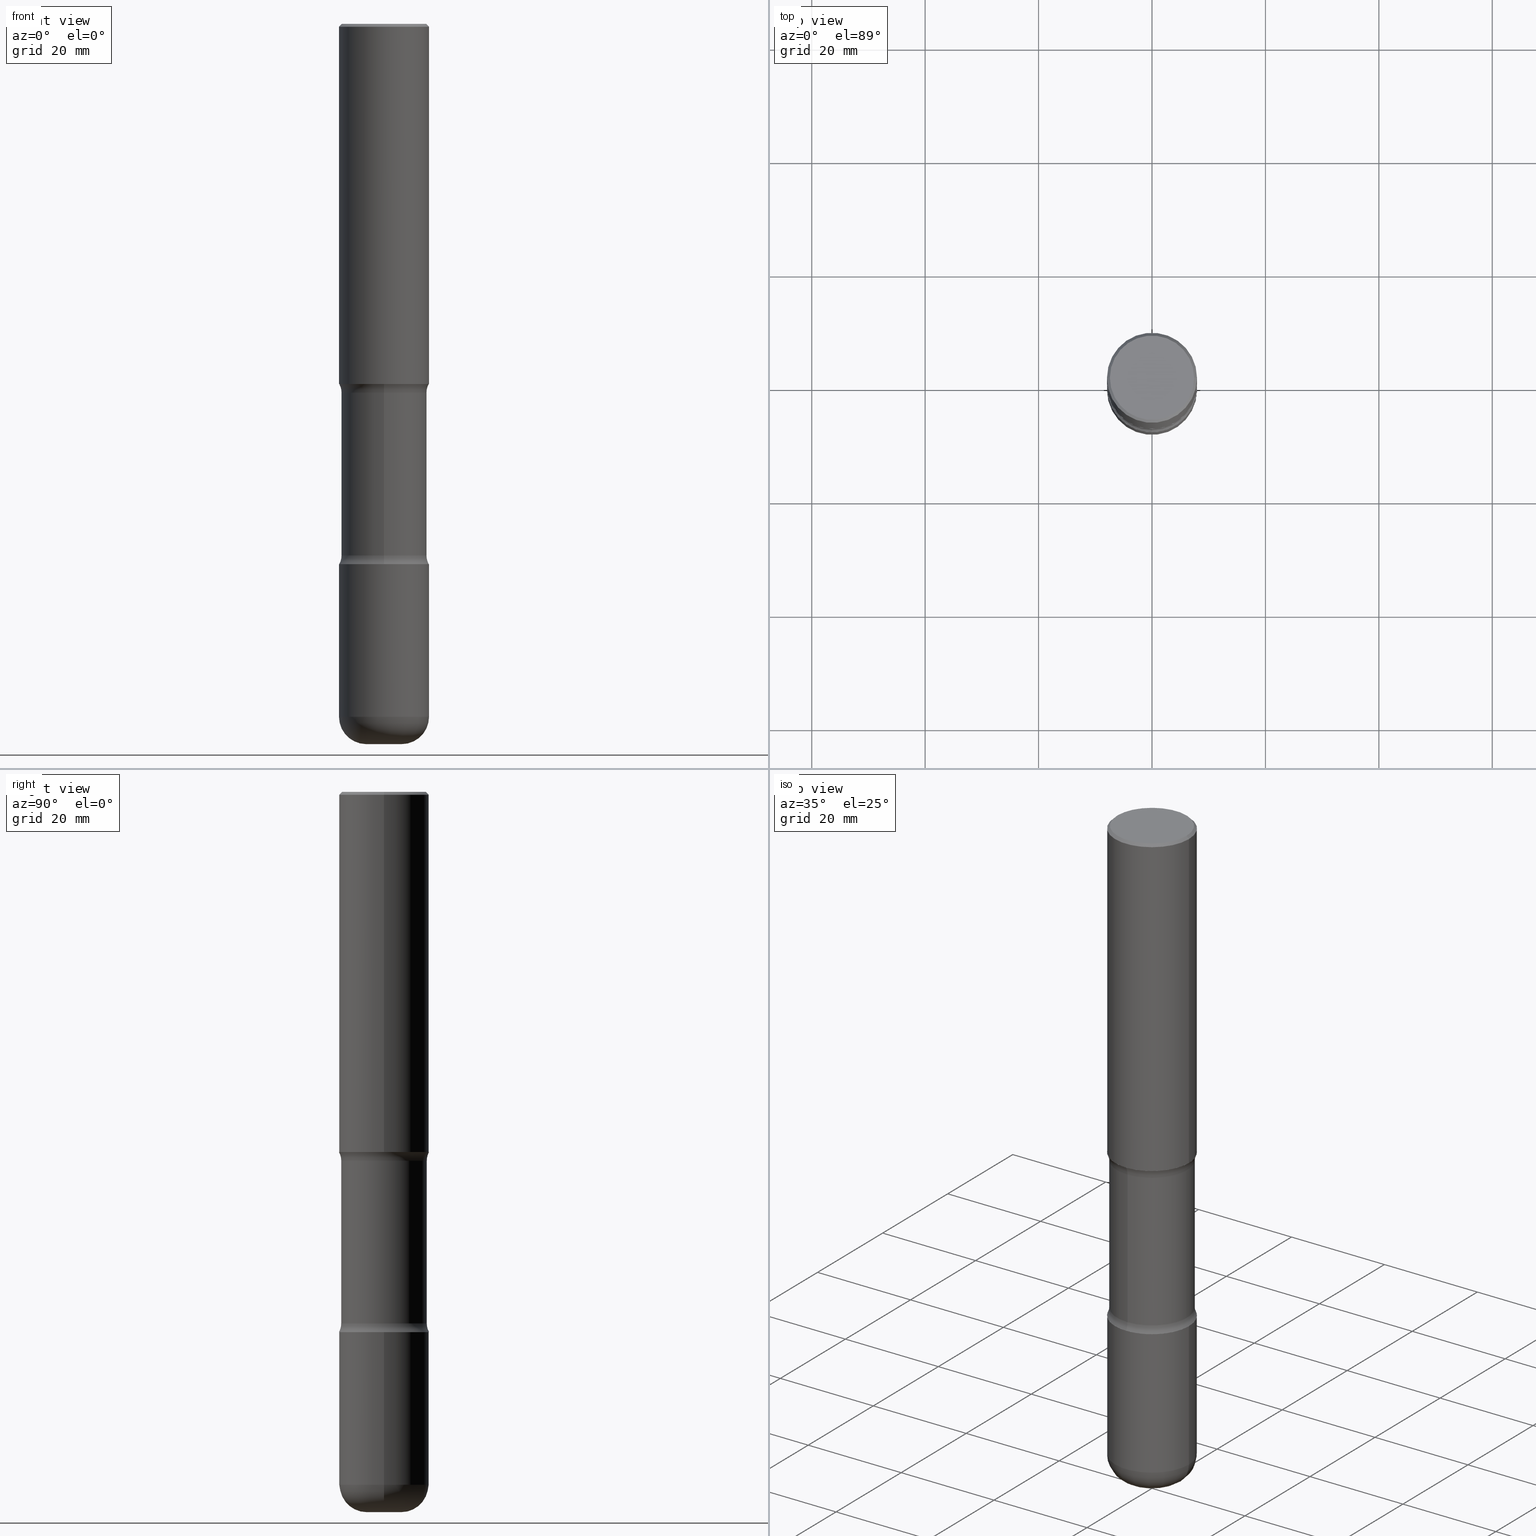
[diagram: canonical four-view strip — front | top / right | iso, engineering-drawing reading convention]
A machine part, canonical four-view strip (front | top / right | iso — engineering-drawing reading convention). The complete STEP part file that produces these views, byte-faithful:
ISO-10303-21;
HEADER;
FILE_DESCRIPTION (( 'STEP AP203' ),
    '1' );
FILE_NAME ('37919.STEP',
    '2024-03-02T01:25:12',
    ( '' ),
    ( '' ),
    'SwSTEP 2.0',
    'SolidWorks 2023',
    '' );
FILE_SCHEMA (( 'CONFIG_CONTROL_DESIGN' ));
ENDSEC;

DATA;
#1 = DIRECTION ( 'NONE',  ( 6.982962677686265922E-15, 1.000000000000000000, -3.382661233743975076E-15 ) ) ;
#2 = APPROVAL_DATE_TIME ( #547, #49 ) ;
#3 = DIRECTION ( 'NONE',  ( 6.860497997771529985E-15, 1.000000000000000000, 0.000000000000000000 ) ) ;
#4 = DIRECTION ( 'NONE',  ( -2.445468806185136597E-29, 3.491481338843145583E-15, 1.000000000000000000 ) ) ;
#5 = ADVANCED_FACE ( 'NONE', ( #72 ), #67, .T. ) ;
#6 = DIRECTION ( 'NONE',  ( 1.000000000000000000, -6.982962677686266711E-15, 4.876176775795936353E-29 ) ) ;
#7 = AXIS2_PLACEMENT_3D ( 'NONE', #174, #43, #542 ) ;
#8 = ORIENTED_EDGE ( 'NONE', *, *, #112, .F. ) ;
#9 = EDGE_CURVE ( 'NONE', #390, #218, #244, .T. ) ;
#10 = PLANE ( 'NONE',  #150 ) ;
#11 = ORIENTED_EDGE ( 'NONE', *, *, #134, .F. ) ;
#12 = ORIENTED_EDGE ( 'NONE', *, *, #462, .T. ) ;
#13 = CIRCLE ( 'NONE', #206, 0.3125000000000002220 ) ;
#14 = CARTESIAN_POINT ( 'NONE',  ( 0.3124999999999998890, -2.213735251080466123E-15, -0.02000000000000006981 ) ) ;
#15 = CYLINDRICAL_SURFACE ( 'NONE', #475, 0.2968750000000000000 ) ;
#16 = ORIENTED_EDGE ( 'NONE', *, *, #413, .T. ) ;
#17 = EDGE_CURVE ( 'NONE', #192, #264, #533, .T. ) ;
#18 = DIRECTION ( 'NONE',  ( -2.445468806185136597E-29, 3.491481338843145583E-15, 1.000000000000000000 ) ) ;
#19 = AXIS2_PLACEMENT_3D ( 'NONE', #220, #166, #439 ) ;
#20 = PERSON_AND_ORGANIZATION_ROLE ( 'design_owner' ) ;
#21 = DIRECTION ( 'NONE',  ( 2.521457479434076939E-29, -3.382661233743975076E-15, -1.000000000000000000 ) ) ;
#22 = ADVANCED_FACE ( 'NONE', ( #88 ), #132, .T. ) ;
#23 = CARTESIAN_POINT ( 'NONE',  ( -0.3125000000000000000, 2.220446049250313081E-15, -1.537167215704658232E-29 ) ) ;
#24 = ORIENTED_EDGE ( 'NONE', *, *, #232, .F. ) ;
#25 = MECHANICAL_CONTEXT ( 'NONE', #57, 'mechanical' ) ;
#26 = ADVANCED_FACE ( 'NONE', ( #408 ), #256, .T. ) ;
#27 = AXIS2_PLACEMENT_3D ( 'NONE', #486, #97, #6 ) ;
#28 = COORDINATED_UNIVERSAL_TIME_OFFSET ( 5, 0, .BEHIND. ) ;
#29 = PLANE ( 'NONE',  #137 ) ;
#30 = AXIS2_PLACEMENT_3D ( 'NONE', #463, #328, #496 ) ;
#31 = DIRECTION ( 'NONE',  ( 1.000000000000000000, -6.860497997771530774E-15, 4.842131541558068249E-29 ) ) ;
#32 = DESIGN_CONTEXT ( 'detailed design', #202, 'design' ) ;
#33 = EDGE_CURVE ( 'NONE', #494, #222, #183, .T. ) ;
#34 = EDGE_LOOP ( 'NONE', ( #223, #415, #195, #58 ) ) ;
#35 = DIRECTION ( 'NONE',  ( 2.521457479434076939E-29, -3.382661233743975076E-15, -1.000000000000000000 ) ) ;
#36 = APPROVAL_DATE_TIME ( #85, #126 ) ;
#37 = DATE_AND_TIME ( #403, #420 ) ;
#38 = DIRECTION ( 'NONE',  ( -2.445468806185136877E-29, 3.491481338843145188E-15, 1.000000000000000000 ) ) ;
#39 = EDGE_LOOP ( 'NONE', ( #250, #299, #307, #82 ) ) ;
#40 = AXIS2_PLACEMENT_3D ( 'NONE', #527, #324, #103 ) ;
#41 = ORIENTED_EDGE ( 'NONE', *, *, #9, .T. ) ;
#42 = CIRCLE ( 'NONE', #30, 0.3125000000000002776 ) ;
#43 = DIRECTION ( 'NONE',  ( 2.521457479434076939E-29, -3.382661233743975076E-15, -1.000000000000000000 ) ) ;
#44 = ORIENTED_EDGE ( 'NONE', *, *, #17, .T. ) ;
#45 = PERSON_AND_ORGANIZATION_ROLE ( 'classification_officer' ) ;
#46 = CARTESIAN_POINT ( 'NONE',  ( 2.073067044938200360E-15, 0.2968749999999871214, -3.689484635215509289 ) ) ;
#47 = DIRECTION ( 'NONE',  ( 6.982962677686266711E-15, 1.000000000000000000, -3.680805717779217644E-15 ) ) ;
#48 = DIRECTION ( 'NONE',  ( -6.982962677686266711E-15, -1.000000000000000000, 0.000000000000000000 ) ) ;
#49 = APPROVAL ( #77, 'UNSPECIFIED' ) ;
#50 = FACE_OUTER_BOUND ( 'NONE', #199, .T. ) ;
#51 = MANIFOLD_SOLID_BREP ( 'Body-Move/Copy2[2]', #322 ) ;
#52 = EDGE_LOOP ( 'NONE', ( #16, #398 ) ) ;
#53 = AXIS2_PLACEMENT_3D ( 'NONE', #295, #194, #469 ) ;
#54 = ORIENTED_EDGE ( 'NONE', *, *, #382, .F. ) ;
#55 = ADVANCED_FACE ( 'NONE', ( #311 ), #212, .F. ) ;
#56 = CARTESIAN_POINT ( 'NONE',  ( 9.170508023194261117E-29, -1.309305502066179584E-14, -3.749999999999999556 ) ) ;
#57 = APPLICATION_CONTEXT ( 'configuration controlled 3d designs of mechanical parts and assemblies' ) ;
#58 = ORIENTED_EDGE ( 'NONE', *, *, #426, .F. ) ;
#59 = APPROVAL_STATUS ( 'not_yet_approved' ) ;
#60 = CARTESIAN_POINT ( 'NONE',  ( 9.170508023194261117E-29, -1.309305502066179584E-14, -3.749999999999999556 ) ) ;
#61 = CIRCLE ( 'NONE', #332, 0.3125000000000001665 ) ;
#62 = VECTOR ( 'NONE', #414, 39.37007874015748143 ) ;
#63 = LINE ( 'NONE', #14, #62 ) ;
#64 = ADVANCED_FACE ( 'NONE', ( #162 ), #367, .T. ) ;
#65 = ORIENTED_EDGE ( 'NONE', *, *, #152, .T. ) ;
#66 = CARTESIAN_POINT ( 'NONE',  ( 6.113672015462840371E-29, -8.728703347107863365E-15, -2.499999999999999556 ) ) ;
#67 = CONICAL_SURFACE ( 'NONE', #353, 0.3124999999999998890, 0.7853981633974479459 ) ;
#68 = ADVANCED_FACE ( 'NONE', ( #402 ), #460, .F. ) ;
#69 = AXIS2_PLACEMENT_3D ( 'NONE', #490, #18, #273 ) ;
#70 = ADVANCED_BREP_SHAPE_REPRESENTATION ( '37919', ( #242, #51, #253, #410 ), #396 ) ;
#71 = DIRECTION ( 'NONE',  ( 2.521457479434076939E-29, -3.382661233743975076E-15, -1.000000000000000000 ) ) ;
#72 = FACE_OUTER_BOUND ( 'NONE', #39, .T. ) ;
#73 = EDGE_LOOP ( 'NONE', ( #480, #268 ) ) ;
#74 = ADVANCED_FACE ( 'NONE', ( #233 ), #327, .T. ) ;
#75 = LENGTH_MEASURE_WITH_UNIT ( LENGTH_MEASURE( 0.02539999999999999897 ), #109 );
#76 = DIRECTION ( 'NONE',  ( -2.445468806185136597E-29, 3.491481338843145583E-15, 1.000000000000000000 ) ) ;
#77 = APPROVAL_STATUS ( 'not_yet_approved' ) ;
#78 = DIRECTION ( 'NONE',  ( 6.982962677686265922E-15, 1.000000000000000000, -3.496765431890253764E-15 ) ) ;
#79 = PERSON_AND_ORGANIZATION ( #175, #173 ) ;
#80 = CIRCLE ( 'NONE', #106, 0.3125000000000001665 ) ;
#81 = EDGE_LOOP ( 'NONE', ( #431, #326, #44, #296 ) ) ;
#82 = ORIENTED_EDGE ( 'NONE', *, *, #232, .T. ) ;
#83 = CARTESIAN_POINT ( 'NONE',  ( -0.3124999999999998890, 2.112346210000094260E-15, -0.02000000000000006981 ) ) ;
#84 = ORIENTED_EDGE ( 'NONE', *, *, #196, .F. ) ;
#85 = DATE_AND_TIME ( #123, #513 ) ;
#86 = DIRECTION ( 'NONE',  ( -6.982962677686266711E-15, -1.000000000000000000, 3.491481338843145583E-15 ) ) ;
#87 = ORIENTED_EDGE ( 'NONE', *, *, #204, .T. ) ;
#88 = FACE_OUTER_BOUND ( 'NONE', #89, .T. ) ;
#89 = EDGE_LOOP ( 'NONE', ( #445, #210 ) ) ;
#90 = VERTEX_POINT ( 'NONE', #151 ) ;
#91 = EDGE_CURVE ( 'NONE', #388, #446, #292, .T. ) ;
#92 = DIRECTION ( 'NONE',  ( 2.521457479434076939E-29, -3.382661233743974681E-15, -1.000000000000000000 ) ) ;
#93 = CARTESIAN_POINT ( 'NONE',  ( 4.890937612370289799E-31, -6.982962677686315028E-17, -0.02000000000000006981 ) ) ;
#94 = AXIS2_PLACEMENT_3D ( 'NONE', #239, #422, #467 ) ;
#95 = CARTESIAN_POINT ( 'NONE',  ( 2.182175836777019878E-15, 0.3124999999999913958, -2.500000000000000444 ) ) ;
#96 = CARTESIAN_POINT ( 'NONE',  ( 0.3125000000000001665, -1.897620107661249005E-14, -4.810000000000000497 ) ) ;
#97 = DIRECTION ( 'NONE',  ( -2.445468806185136597E-29, 3.491481338843145583E-15, 1.000000000000000000 ) ) ;
#98 = VECTOR ( 'NONE', #370, 39.37007874015748143 ) ;
#99 = AXIS2_PLACEMENT_3D ( 'NONE', #310, #86, #550 ) ;
#100 = DIRECTION ( 'NONE',  ( -2.445468806185136597E-29, 3.491481338843145583E-15, 1.000000000000000000 ) ) ;
#101 = ORIENTED_EDGE ( 'NONE', *, *, #443, .T. ) ;
#102 = ADVANCED_FACE ( 'NONE', ( #503 ), #158, .F. ) ;
#103 = DIRECTION ( 'NONE',  ( 1.000000000000000000, -6.982962677686266711E-15, 4.876176775795936353E-29 ) ) ;
#104 = PLANE ( 'NONE',  #94 ) ;
#105 = ORIENTED_EDGE ( 'NONE', *, *, #91, .T. ) ;
#106 = AXIS2_PLACEMENT_3D ( 'NONE', #60, #482, #148 ) ;
#107 = DIRECTION ( 'NONE',  ( 2.521457479434076939E-29, -3.382661233743975076E-15, -1.000000000000000000 ) ) ;
#108 = ORIENTED_EDGE ( 'NONE', *, *, #382, .T. ) ;
#109 =( LENGTH_UNIT ( ) NAMED_UNIT ( * ) SI_UNIT ( $, .METRE. ) );
#110 = DIRECTION ( 'NONE',  ( -6.982962677686265922E-15, -1.000000000000000000, 3.382661233743974681E-15 ) ) ;
#111 = CARTESIAN_POINT ( 'NONE',  ( 9.170508023194261117E-29, -1.309305502066179584E-14, -3.749999999999999556 ) ) ;
#112 = EDGE_CURVE ( 'NONE', #348, #518, #341, .T. ) ;
#113 = VECTOR ( 'NONE', #383, 39.37007874015748143 ) ;
#114 = VECTOR ( 'NONE', #38, 39.37007874015748143 ) ;
#115 = DIRECTION ( 'NONE',  ( 1.000000000000000000, 0.000000000000000000, 0.000000000000000000 ) ) ;
#116 = DIRECTION ( 'NONE',  ( -2.521457479434076939E-29, 3.382661233743974681E-15, 1.000000000000000000 ) ) ;
#117 = DIRECTION ( 'NONE',  ( 2.521457479434076939E-29, -3.382661233743975076E-15, -1.000000000000000000 ) ) ;
#118 = EDGE_CURVE ( 'NONE', #423, #177, #489, .T. ) ;
#119 = FACE_OUTER_BOUND ( 'NONE', #154, .T. ) ;
#120 = CARTESIAN_POINT ( 'NONE',  ( 2.182175836777050644E-15, 0.3124999999999870104, -3.750000000000000888 ) ) ;
#121 = DIRECTION ( 'NONE',  ( -6.982962677686266711E-15, -1.000000000000000000, 0.000000000000000000 ) ) ;
#122 = EDGE_LOOP ( 'NONE', ( #124, #483 ) ) ;
#123 = CALENDAR_DATE ( 2024, 1, 3 ) ;
#124 = ORIENTED_EDGE ( 'NONE', *, *, #226, .F. ) ;
#125 = DIRECTION ( 'NONE',  ( 2.445468806185136597E-29, -3.491481338843145583E-15, -1.000000000000000000 ) ) ;
#126 = APPROVAL ( #59, 'UNSPECIFIED' ) ;
#127 = ORIENTED_EDGE ( 'NONE', *, *, #9, .F. ) ;
#128 = DATE_AND_TIME ( #315, #449 ) ;
#129 = DIRECTION ( 'NONE',  ( 6.982962677686265133E-15, 1.000000000000000000, -3.680805717779217644E-15 ) ) ;
#130 = EDGE_CURVE ( 'NONE', #488, #192, #61, .T. ) ;
#131 = SHAPE_DEFINITION_REPRESENTATION ( #416, #70 ) ;
#132 = PLANE ( 'NONE',  #428 ) ;
#133 = ORIENTED_EDGE ( 'NONE', *, *, #142, .T. ) ;
#134 = EDGE_CURVE ( 'NONE', #177, #390, #203, .T. ) ;
#135 = DATE_AND_TIME ( #521, #436 ) ;
#136 = DIRECTION ( 'NONE',  ( 1.000000000000000000, -6.982962677686266711E-15, 4.876067333457692840E-29 ) ) ;
#137 = AXIS2_PLACEMENT_3D ( 'NONE', #189, #92, #298 ) ;
#138 = LOCAL_TIME ( 20, 25, 12.00000000000000000, #28 ) ;
#139 = DIRECTION ( 'NONE',  ( 1.000000000000000000, -6.982962677686264344E-15, 0.000000000000000000 ) ) ;
#140 = PERSON_AND_ORGANIZATION ( #175, #173 ) ;
#141 = CARTESIAN_POINT ( 'NONE',  ( 4.890937612370289799E-31, -6.982962677686315028E-17, -0.02000000000000006981 ) ) ;
#142 = EDGE_CURVE ( 'NONE', #217, #558, #143, .T. ) ;
#143 = CIRCLE ( 'NONE', #303, 0.2924999999999998157 ) ;
#144 = CIRCLE ( 'NONE', #409, 0.1250000000000000000 ) ;
#145 = CIRCLE ( 'NONE', #7, 0.2968750000000000000 ) ;
#146 = ORIENTED_EDGE ( 'NONE', *, *, #186, .T. ) ;
#147 = EDGE_CURVE ( 'NONE', #558, #217, #553, .T. ) ;
#148 = DIRECTION ( 'NONE',  ( 6.982962677686265133E-15, 1.000000000000000000, -3.496765431890254947E-15 ) ) ;
#149 = CARTESIAN_POINT ( 'NONE',  ( -0.1225000000000003308, -1.558028551674741034E-14, -5.000000000000000000 ) ) ;
#150 = AXIS2_PLACEMENT_3D ( 'NONE', #318, #280, #406 ) ;
#151 = CARTESIAN_POINT ( 'NONE',  ( -0.3125000000000001665, -1.272309408099834754E-14, -3.749999999999999556 ) ) ;
#152 = EDGE_CURVE ( 'NONE', #222, #264, #168, .T. ) ;
#153 = EDGE_LOOP ( 'NONE', ( #108, #178, #461, #283 ) ) ;
#154 = EDGE_LOOP ( 'NONE', ( #440, #180, #65, #275 ) ) ;
#155 = EDGE_LOOP ( 'NONE', ( #8, #101, #146, #302 ) ) ;
#156 = DIRECTION ( 'NONE',  ( -2.445468806185136597E-29, 3.491481338843145583E-15, 1.000000000000000000 ) ) ;
#157 = ORIENTED_EDGE ( 'NONE', *, *, #529, .T. ) ;
#158 = PLANE ( 'NONE',  #184 ) ;
#159 = AXIS2_PLACEMENT_3D ( 'NONE', #163, #125, #442 ) ;
#160 = TOROIDAL_SURFACE ( 'NONE', #536, 0.1225000000000003031, 0.1899999999999998912 ) ;
#161 = CARTESIAN_POINT ( 'NONE',  ( 1.176270495775050811E-28, -1.679402523983553013E-14, -4.810000000000000497 ) ) ;
#162 = FACE_OUTER_BOUND ( 'NONE', #361, .T. ) ;
#163 = CARTESIAN_POINT ( 'NONE',  ( 4.890937612370289799E-31, -6.982962677686315028E-17, -0.02000000000000006981 ) ) ;
#164 = DIRECTION ( 'NONE',  ( 6.982962677686265922E-15, 1.000000000000000000, -3.382661233743975076E-15 ) ) ;
#165 = CC_DESIGN_DATE_AND_TIME_ASSIGNMENT ( #135, #369, ( #471 ) ) ;
#166 = DIRECTION ( 'NONE',  ( 2.521457479434076939E-29, -3.382661233743975076E-15, -1.000000000000000000 ) ) ;
#167 = ORIENTED_EDGE ( 'NONE', *, *, #147, .F. ) ;
#168 = CIRCLE ( 'NONE', #19, 0.2968750000000000000 ) ;
#169 = DATE_TIME_ROLE ( 'creation_date' ) ;
#170 = DIRECTION ( 'NONE',  ( -2.445468806185136597E-29, 3.491481338843145583E-15, 1.000000000000000000 ) ) ;
#171 = CIRCLE ( 'NONE', #429, 0.3125000000000001665 ) ;
#172 = ADVANCED_FACE ( 'NONE', ( #254 ), #417, .T. ) ;
#173 = ORGANIZATION ( 'UNSPECIFIED', 'UNSPECIFIED', '' ) ;
#174 = CARTESIAN_POINT ( 'NONE',  ( 6.171273093058203090E-29, -9.069431456984199816E-15, -2.560515364784490711 ) ) ;
#175 = PERSON ( 'UNSPECIFIED', 'UNSPECIFIED', 'UNSPECIFIED', ('UNSPECIFIED'), ('UNSPECIFIED'), ('UNSPECIFIED') ) ;
#176 = PERSON_AND_ORGANIZATION ( #175, #173 ) ;
#177 = VERTEX_POINT ( 'NONE', #478 ) ;
#178 = ORIENTED_EDGE ( 'NONE', *, *, #196, .T. ) ;
#179 = CARTESIAN_POINT ( 'NONE',  ( 0.1225000000000003308, -1.831281962223229977E-14, -5.000000000000000000 ) ) ;
#180 = ORIENTED_EDGE ( 'NONE', *, *, #272, .T. ) ;
#181 = FACE_OUTER_BOUND ( 'NONE', #34, .T. ) ;
#182 = PERSON_AND_ORGANIZATION_ROLE ( 'creator' ) ;
#183 = LINE ( 'NONE', #187, #98 ) ;
#184 = AXIS2_PLACEMENT_3D ( 'NONE', #284, #116, #110 ) ;
#185 = CIRCLE ( 'NONE', #386, 0.3125000000000002220 ) ;
#186 = EDGE_CURVE ( 'NONE', #389, #388, #258, .T. ) ;
#187 = CARTESIAN_POINT ( 'NONE',  ( -2.036710343088299976E-15, -0.2968750000000173195, -4.999999999999999112 ) ) ;
#188 = DIRECTION ( 'NONE',  ( 6.982962677686266711E-15, 1.000000000000000000, -3.680805717779217644E-15 ) ) ;
#189 = CARTESIAN_POINT ( 'NONE',  ( 6.113672015462840371E-29, -8.728703347107863365E-15, -2.499999999999999556 ) ) ;
#190 = AXIS2_PLACEMENT_3D ( 'NONE', #434, #170, #136 ) ;
#191 = EDGE_CURVE ( 'NONE', #518, #388, #512, .T. ) ;
#192 = VERTEX_POINT ( 'NONE', #120 ) ;
#193 = DIRECTION ( 'NONE',  ( 2.521457479434076939E-29, -3.382661233743975076E-15, -1.000000000000000000 ) ) ;
#194 = DIRECTION ( 'NONE',  ( -2.445468806185136597E-29, 3.491481338843145583E-15, 1.000000000000000000 ) ) ;
#195 = ORIENTED_EDGE ( 'NONE', *, *, #214, .F. ) ;
#196 = EDGE_CURVE ( 'NONE', #518, #90, #393, .T. ) ;
#197 = FACE_OUTER_BOUND ( 'NONE', #153, .T. ) ;
#198 = DIRECTION ( 'NONE',  ( 6.982962677686265133E-15, 1.000000000000000000, -3.496765431890254947E-15 ) ) ;
#199 = EDGE_LOOP ( 'NONE', ( #546, #338 ) ) ;
#200 = ORIENTED_EDGE ( 'NONE', *, *, #118, .T. ) ;
#201 =( CONVERSION_BASED_UNIT ( 'INCH', #75 ) LENGTH_UNIT ( ) NAMED_UNIT ( #266 ) );
#202 = APPLICATION_CONTEXT ( 'configuration controlled 3d designs of mechanical parts and assemblies' ) ;
#203 = LINE ( 'NONE', #385, #113 ) ;
#204 = EDGE_CURVE ( 'NONE', #177, #423, #185, .T. ) ;
#205 = AXIS2_PLACEMENT_3D ( 'NONE', #56, #231, #372 ) ;
#206 = AXIS2_PLACEMENT_3D ( 'NONE', #520, #378, #139 ) ;
#207 = PRODUCT_DEFINITION_FORMATION_WITH_SPECIFIED_SOURCE ( 'ANY', '', #377, .NOT_KNOWN. ) ;
#208 = APPLICATION_PROTOCOL_DEFINITION ( 'international standard', 'config_control_design', 1994, #202 ) ;
#209 = CARTESIAN_POINT ( 'NONE',  ( 1.176270495775050811E-28, -1.679402523983553013E-14, -4.810000000000000497 ) ) ;
#210 = ORIENTED_EDGE ( 'NONE', *, *, #443, .F. ) ;
#211 = CARTESIAN_POINT ( 'NONE',  ( -0.3124999999999998890, 2.112346210000094260E-15, -0.02000000000000006981 ) ) ;
#212 = TOROIDAL_SURFACE ( 'NONE', #227, 0.4218750000000000555, 0.1250000000000000000 ) ;
#213 = AXIS2_PLACEMENT_3D ( 'NONE', #312, #262, #1 ) ;
#214 = EDGE_CURVE ( 'NONE', #264, #222, #435, .T. ) ;
#215 = PERSON_AND_ORGANIZATION ( #175, #173 ) ;
#216 = CARTESIAN_POINT ( 'NONE',  ( 9.017921104037724021E-29, -1.288835204215942242E-14, -3.689484635215508401 ) ) ;
#217 = VERTEX_POINT ( 'NONE', #392 ) ;
#218 = VERTEX_POINT ( 'NONE', #83 ) ;
#219 = CARTESIAN_POINT ( 'NONE',  ( -2.090307983695953569E-15, -0.2968750000000091038, -2.560515364784489822 ) ) ;
#220 = CARTESIAN_POINT ( 'NONE',  ( 9.017921104037724021E-29, -1.288835204215942242E-14, -3.689484635215508401 ) ) ;
#221 = DIRECTION ( 'NONE',  ( 1.000000000000000000, -6.982962677686262766E-15, 0.000000000000000000 ) ) ;
#222 = VERTEX_POINT ( 'NONE', #397 ) ;
#223 = ORIENTED_EDGE ( 'NONE', *, *, #363, .T. ) ;
#224 = DIRECTION ( 'NONE',  ( -1.000000000000000000, 6.982962677686265922E-15, -4.876176775795935793E-29 ) ) ;
#225 = DIRECTION ( 'NONE',  ( -2.445468806185136597E-29, 3.491481338843145583E-15, 1.000000000000000000 ) ) ;
#226 = EDGE_CURVE ( 'NONE', #400, #238, #373, .T. ) ;
#227 = AXIS2_PLACEMENT_3D ( 'NONE', #345, #117, #300 ) ;
#228 = VECTOR ( 'NONE', #453, 39.37007874015748143 ) ;
#229 = ORIENTED_EDGE ( 'NONE', *, *, #426, .T. ) ;
#230 = ORIENTED_EDGE ( 'NONE', *, *, #313, .F. ) ;
#231 = DIRECTION ( 'NONE',  ( 2.438088387897960049E-29, -3.491481338843145188E-15, -1.000000000000000000 ) ) ;
#232 = EDGE_CURVE ( 'NONE', #218, #390, #554, .T. ) ;
#233 = FACE_OUTER_BOUND ( 'NONE', #329, .T. ) ;
#234 = EDGE_LOOP ( 'NONE', ( #133, #381 ) ) ;
#235 = CARTESIAN_POINT ( 'NONE',  ( -2.143905624303512894E-15, -0.3125000000000132672, -3.749999999999998668 ) ) ;
#236 = TOROIDAL_SURFACE ( 'NONE', #484, 0.4218750000000001110, 0.1250000000000001388 ) ;
#237 = VERTEX_POINT ( 'NONE', #252 ) ;
#238 = VERTEX_POINT ( 'NONE', #352 ) ;
#239 = CARTESIAN_POINT ( 'NONE',  ( 2.042516583223231356E-15, 0.2924999999999998157, -1.019124035366569212E-15 ) ) ;
#240 = ORIENTED_EDGE ( 'NONE', *, *, #134, .T. ) ;
#241 = CYLINDRICAL_SURFACE ( 'NONE', #53, 0.3125000000000001665 ) ;
#242 = MANIFOLD_SOLID_BREP ( 'Body-Move/Copy2[1]', #394 ) ;
#243 = CARTESIAN_POINT ( 'NONE',  ( 9.022519586318873617E-29, -1.288176675380345821E-14, -3.689484635215508401 ) ) ;
#244 = CIRCLE ( 'NONE', #498, 0.3124999999999998890 ) ;
#245 = CC_DESIGN_SECURITY_CLASSIFICATION ( #471, ( #207 ) ) ;
#246 = EDGE_CURVE ( 'NONE', #217, #218, #452, .T. ) ;
#247 = DIRECTION ( 'NONE',  ( -2.445468806185136597E-29, 3.491481338843145583E-15, 1.000000000000000000 ) ) ;
#248 = CARTESIAN_POINT ( 'NONE',  ( 4.890937612370289799E-31, -6.982962677686315028E-17, -0.02000000000000006981 ) ) ;
#249 = CARTESIAN_POINT ( 'NONE',  ( 9.022519586318873617E-29, -1.288176675380345821E-14, -3.689484635215508401 ) ) ;
#250 = ORIENTED_EDGE ( 'NONE', *, *, #462, .F. ) ;
#251 = AXIS2_PLACEMENT_3D ( 'NONE', #249, #549, #164 ) ;
#252 = CARTESIAN_POINT ( 'NONE',  ( 2.073067044938171961E-15, 0.2968749999999909517, -2.560515364784492043 ) ) ;
#253 = MANIFOLD_SOLID_BREP ( 'Body-Move/Copy2[4]', #277 ) ;
#254 = FACE_OUTER_BOUND ( 'NONE', #497, .T. ) ;
#255 = EDGE_LOOP ( 'NONE', ( #359, #334, #229, #464 ) ) ;
#256 = CYLINDRICAL_SURFACE ( 'NONE', #27, 0.3125000000000000000 ) ;
#257 = ORIENTED_EDGE ( 'NONE', *, *, #112, .T. ) ;
#258 = CIRCLE ( 'NONE', #99, 0.1899999999999998634 ) ;
#259 = AXIS2_PLACEMENT_3D ( 'NONE', #216, #35, #129 ) ;
#260 = PERSON_AND_ORGANIZATION ( #175, #173 ) ;
#261 = DIRECTION ( 'NONE',  ( -2.445468806185136597E-29, 3.491481338843145583E-15, 1.000000000000000000 ) ) ;
#262 = DIRECTION ( 'NONE',  ( 2.521457479434076939E-29, -3.382661233743975076E-15, -1.000000000000000000 ) ) ;
#263 = ORIENTED_EDGE ( 'NONE', *, *, #282, .T. ) ;
#264 = VERTEX_POINT ( 'NONE', #46 ) ;
#265 = DIRECTION ( 'NONE',  ( 1.000000000000000000, -6.982962677686262766E-15, 0.000000000000000000 ) ) ;
#266 = DIMENSIONAL_EXPONENTS ( 1.000000000000000000, 0.000000000000000000, 0.000000000000000000, 0.000000000000000000, 0.000000000000000000, 0.000000000000000000, 0.000000000000000000 ) ;
#267 = CC_DESIGN_PERSON_AND_ORGANIZATION_ASSIGNMENT ( #427, #20, ( #377 ) ) ;
#268 = ORIENTED_EDGE ( 'NONE', *, *, #456, .T. ) ;
#269 = DIRECTION ( 'NONE',  ( -2.445468806185136597E-29, 3.491481338843145583E-15, 1.000000000000000000 ) ) ;
#270 = AXIS2_PLACEMENT_3D ( 'NONE', #540, #281, #286 ) ;
#271 = CIRCLE ( 'NONE', #465, 0.1225000000000003308 ) ;
#272 = EDGE_CURVE ( 'NONE', #488, #222, #342, .T. ) ;
#273 = DIRECTION ( 'NONE',  ( 1.000000000000000000, -6.982962677686265922E-15, 4.883557194083112340E-29 ) ) ;
#274 = DIRECTION ( 'NONE',  ( 1.000000000000000000, -6.982962677686265133E-15, 0.000000000000000000 ) ) ;
#275 = ORIENTED_EDGE ( 'NONE', *, *, #17, .F. ) ;
#276 = CARTESIAN_POINT ( 'NONE',  ( 1.222734403092568523E-28, -1.745740669421572989E-14, -5.000000000000000000 ) ) ;
#277 = CLOSED_SHELL ( 'NONE', ( #337, #551, #421, #55, #291, #102, #306, #350 ) ) ;
#278 = CIRCLE ( 'NONE', #526, 0.1225000000000003308 ) ;
#279 = CC_DESIGN_APPROVAL ( #49, ( #495 ) ) ;
#280 = DIRECTION ( 'NONE',  ( -2.438088387897960049E-29, 3.491481338843145188E-15, 1.000000000000000000 ) ) ;
#281 = DIRECTION ( 'NONE',  ( 7.105427357601001859E-15, 1.000000000000000000, -3.491481338843145583E-15 ) ) ;
#282 = EDGE_CURVE ( 'NONE', #494, #238, #470, .T. ) ;
#283 = ORIENTED_EDGE ( 'NONE', *, *, #91, .F. ) ;
#284 = CARTESIAN_POINT ( 'NONE',  ( 9.170508023194261117E-29, -1.309305502066179584E-14, -3.749999999999999556 ) ) ;
#285 = EDGE_LOOP ( 'NONE', ( #87, #157, #127, #11 ) ) ;
#286 = DIRECTION ( 'NONE',  ( -1.000000000000000000, 7.105427357601003436E-15, 0.000000000000000000 ) ) ;
#287 = ORIENTED_EDGE ( 'NONE', *, *, #226, .T. ) ;
#288 =( NAMED_UNIT ( * ) SI_UNIT ( $, .STERADIAN. ) SOLID_ANGLE_UNIT ( ) );
#289 = AXIS2_PLACEMENT_3D ( 'NONE', #355, #404, #3 ) ;
#290 = APPROVAL_PERSON_ORGANIZATION ( #140, #126, #530 ) ;
#291 = ADVANCED_FACE ( 'NONE', ( #514 ), #29, .F. ) ;
#292 = LINE ( 'NONE', #349, #371 ) ;
#293 = DIRECTION ( 'NONE',  ( -2.445468806185136597E-29, 3.491481338843145583E-15, 1.000000000000000000 ) ) ;
#294 = CC_DESIGN_PERSON_AND_ORGANIZATION_ASSIGNMENT ( #215, #182, ( #207 ) ) ;
#295 = CARTESIAN_POINT ( 'NONE',  ( 0.000000000000000000, 0.000000000000000000, 0.000000000000000000 ) ) ;
#296 = ORIENTED_EDGE ( 'NONE', *, *, #214, .T. ) ;
#297 = UNCERTAINTY_MEASURE_WITH_UNIT (LENGTH_MEASURE( 1.000000000000000082E-05 ), #201, 'distance_accuracy_value', 'NONE');
#298 = DIRECTION ( 'NONE',  ( 6.982962677686265922E-15, 1.000000000000000000, -3.382661233743974681E-15 ) ) ;
#299 = ORIENTED_EDGE ( 'NONE', *, *, #142, .F. ) ;
#300 = DIRECTION ( 'NONE',  ( 6.982962677686265922E-15, 1.000000000000000000, -3.382661233743975076E-15 ) ) ;
#301 = DIRECTION ( 'NONE',  ( -2.445468806185136597E-29, 3.491481338843145583E-15, 1.000000000000000000 ) ) ;
#302 = ORIENTED_EDGE ( 'NONE', *, *, #191, .F. ) ;
#303 = AXIS2_PLACEMENT_3D ( 'NONE', #344, #364, #522 ) ;
#304 = CIRCLE ( 'NONE', #314, 0.3125000000000001665 ) ;
#305 = DIRECTION ( 'NONE',  ( 6.860497997771529985E-15, 1.000000000000000000, 0.000000000000000000 ) ) ;
#306 = ADVANCED_FACE ( 'NONE', ( #358 ), #323, .F. ) ;
#307 = ORIENTED_EDGE ( 'NONE', *, *, #246, .T. ) ;
#308 = DIRECTION ( 'NONE',  ( 2.521457479434076939E-29, -3.382661233743975076E-15, -1.000000000000000000 ) ) ;
#309 = PERSON_AND_ORGANIZATION_ROLE ( 'creator' ) ;
#310 = CARTESIAN_POINT ( 'NONE',  ( 0.1225000000000003031, -1.764943816785210001E-14, -4.810000000000000497 ) ) ;
#311 = FACE_OUTER_BOUND ( 'NONE', #543, .T. ) ;
#312 = CARTESIAN_POINT ( 'NONE',  ( 6.166278489433880529E-29, -9.076584013649411488E-15, -2.560515364784490711 ) ) ;
#313 = EDGE_CURVE ( 'NONE', #237, #400, #144, .T. ) ;
#314 = AXIS2_PLACEMENT_3D ( 'NONE', #111, #247, #343 ) ;
#315 = CALENDAR_DATE ( 2024, 1, 3 ) ;
#316 = CARTESIAN_POINT ( 'NONE',  ( 6.113672015462840371E-29, -8.728703347107863365E-15, -2.499999999999999556 ) ) ;
#317 = APPROVAL_PERSON_ORGANIZATION ( #391, #539, #451 ) ;
#318 = CARTESIAN_POINT ( 'NONE',  ( 6.113672015462840371E-29, -8.728703347107863365E-15, -2.499999999999999556 ) ) ;
#319 = CARTESIAN_POINT ( 'NONE',  ( 2.945937379648984488E-15, 0.4218749999999872324, -3.689484635215510178 ) ) ;
#320 = EDGE_LOOP ( 'NONE', ( #516, #263, #472, #230 ) ) ;
#321 = EDGE_CURVE ( 'NONE', #494, #237, #145, .T. ) ;
#322 = CLOSED_SHELL ( 'NONE', ( #26, #172, #5, #492, #330, #74 ) ) ;
#323 = TOROIDAL_SURFACE ( 'NONE', #251, 0.4218750000000001110, 0.1250000000000001388 ) ;
#324 = DIRECTION ( 'NONE',  ( -2.445468806185136597E-29, 3.491481338843145583E-15, 1.000000000000000000 ) ) ;
#325 = FACE_OUTER_BOUND ( 'NONE', #255, .T. ) ;
#326 = ORIENTED_EDGE ( 'NONE', *, *, #413, .F. ) ;
#327 = CYLINDRICAL_SURFACE ( 'NONE', #40, 0.3125000000000000000 ) ;
#328 = DIRECTION ( 'NONE',  ( 2.521457479434076939E-29, -3.382661233743975076E-15, -1.000000000000000000 ) ) ;
#329 = EDGE_LOOP ( 'NONE', ( #560, #200, #240, #24 ) ) ;
#330 = ADVANCED_FACE ( 'NONE', ( #50 ), #10, .F. ) ;
#331 = CARTESIAN_POINT ( 'NONE',  ( 0.3124999999999998890, -2.213735251080466123E-15, -0.02000000000000006981 ) ) ;
#332 = AXIS2_PLACEMENT_3D ( 'NONE', #538, #21, #198 ) ;
#333 = AXIS2_PLACEMENT_3D ( 'NONE', #531, #107, #47 ) ;
#334 = ORIENTED_EDGE ( 'NONE', *, *, #321, .T. ) ;
#335 = EDGE_CURVE ( 'NONE', #389, #348, #271, .T. ) ;
#336 = CARTESIAN_POINT ( 'NONE',  ( 0.000000000000000000, 0.000000000000000000, 0.000000000000000000 ) ) ;
#337 = ADVANCED_FACE ( 'NONE', ( #181 ), #500, .T. ) ;
#338 = ORIENTED_EDGE ( 'NONE', *, *, #118, .F. ) ;
#339 = ORIENTED_EDGE ( 'NONE', *, *, #186, .F. ) ;
#340 = CARTESIAN_POINT ( 'NONE',  ( -0.3125000000000001665, -1.457357919058521389E-14, -4.810000000000000497 ) ) ;
#341 = CIRCLE ( 'NONE', #270, 0.1899999999999998634 ) ;
#342 = CIRCLE ( 'NONE', #499, 0.1250000000000001388 ) ;
#343 = DIRECTION ( 'NONE',  ( 1.000000000000000000, -6.982962677686265133E-15, 0.000000000000000000 ) ) ;
#344 = CARTESIAN_POINT ( 'NONE',  ( -1.043851414335219820E-46, 1.490343170380447200E-32, 4.268512490100411279E-18 ) ) ;
#345 = CARTESIAN_POINT ( 'NONE',  ( 6.166278489433880529E-29, -9.076584013649411488E-15, -2.560515364784490711 ) ) ;
#346 = CYLINDRICAL_SURFACE ( 'NONE', #418, 0.3125000000000001665 ) ;
#347 = DIRECTION ( 'NONE',  ( -1.000000000000000000, 6.982962677686265922E-15, -4.883557194083112340E-29 ) ) ;
#348 = VERTEX_POINT ( 'NONE', #149 ) ;
#349 = CARTESIAN_POINT ( 'NONE',  ( 0.3125000000000001665, -2.182175836776959530E-15, 1.523805242436230636E-29 ) ) ;
#350 = ADVANCED_FACE ( 'NONE', ( #325 ), #15, .T. ) ;
#351 = COORDINATED_UNIVERSAL_TIME_OFFSET ( 5, 0, .BEHIND. ) ;
#352 = CARTESIAN_POINT ( 'NONE',  ( -2.143905624303545238E-15, -0.3125000000000091593, -2.499999999999998668 ) ) ;
#353 = AXIS2_PLACEMENT_3D ( 'NONE', #93, #454, #515 ) ;
#354 = AXIS2_PLACEMENT_3D ( 'NONE', #557, #308, #78 ) ;
#355 = CARTESIAN_POINT ( 'NONE',  ( -2.894272592809803347E-15, -0.4218750000000091593, -2.560515364784489378 ) ) ;
#356 = ORIENTED_EDGE ( 'NONE', *, *, #246, .F. ) ;
#357 = ORIENTED_EDGE ( 'NONE', *, *, #191, .T. ) ;
#358 = FACE_OUTER_BOUND ( 'NONE', #81, .T. ) ;
#359 = ORIENTED_EDGE ( 'NONE', *, *, #33, .F. ) ;
#360 = SECURITY_CLASSIFICATION_LEVEL ( 'unclassified' ) ;
#361 = EDGE_LOOP ( 'NONE', ( #519, #257, #54, #339 ) ) ;
#362 = FACE_OUTER_BOUND ( 'NONE', #320, .T. ) ;
#363 = EDGE_CURVE ( 'NONE', #237, #494, #380, .T. ) ;
#364 = DIRECTION ( 'NONE',  ( -2.445468806185136597E-29, 3.491481338843145583E-15, 1.000000000000000000 ) ) ;
#365 = CARTESIAN_POINT ( 'NONE',  ( 1.232232987248685960E-28, -1.732138156284176685E-14, -5.000000000000000000 ) ) ;
#366 = CC_DESIGN_DATE_AND_TIME_ASSIGNMENT ( #128, #169, ( #495 ) ) ;
#367 = TOROIDAL_SURFACE ( 'NONE', #69, 0.1225000000000003031, 0.1899999999999998912 ) ;
#368 = VECTOR ( 'NONE', #544, 39.37007874015748143 ) ;
#369 = DATE_TIME_ROLE ( 'classification_date' ) ;
#370 = DIRECTION ( 'NONE',  ( 2.521457479434076939E-29, -3.382661233743974681E-15, -1.000000000000000000 ) ) ;
#371 = VECTOR ( 'NONE', #411, 39.37007874015748143 ) ;
#372 = DIRECTION ( 'NONE',  ( -1.000000000000000000, 6.982962677686265922E-15, -4.876176775795935793E-29 ) ) ;
#373 = CIRCLE ( 'NONE', #354, 0.3125000000000002776 ) ;
#374 = DIRECTION ( 'NONE',  ( 2.521457479434076939E-29, -3.382661233743975076E-15, -1.000000000000000000 ) ) ;
#375 = CC_DESIGN_APPROVAL ( #539, ( #207 ) ) ;
#376 = FACE_OUTER_BOUND ( 'NONE', #234, .T. ) ;
#377 = PRODUCT ( '37919', '37919', '', ( #25 ) ) ;
#378 = DIRECTION ( 'NONE',  ( -2.445468806185136597E-29, 3.491481338843145583E-15, 1.000000000000000000 ) ) ;
#379 = DIRECTION ( 'NONE',  ( 6.982962677686265922E-15, 1.000000000000000000, -3.382661233743975076E-15 ) ) ;
#380 = CIRCLE ( 'NONE', #507, 0.2968750000000000000 ) ;
#381 = ORIENTED_EDGE ( 'NONE', *, *, #147, .T. ) ;
#382 = EDGE_CURVE ( 'NONE', #388, #518, #13, .T. ) ;
#383 = DIRECTION ( 'NONE',  ( -2.445468806185136877E-29, 3.491481338843145188E-15, 1.000000000000000000 ) ) ;
#384 = PERSON_AND_ORGANIZATION ( #175, #173 ) ;
#385 = CARTESIAN_POINT ( 'NONE',  ( 0.3125000000000000000, -2.182175836776958347E-15, 1.523805242436230075E-29 ) ) ;
#386 = AXIS2_PLACEMENT_3D ( 'NONE', #316, #301, #548 ) ;
#387 = CALENDAR_DATE ( 2024, 1, 3 ) ;
#388 = VERTEX_POINT ( 'NONE', #96 ) ;
#389 = VERTEX_POINT ( 'NONE', #179 ) ;
#390 = VERTEX_POINT ( 'NONE', #331 ) ;
#391 = PERSON_AND_ORGANIZATION ( #175, #173 ) ;
#392 = CARTESIAN_POINT ( 'NONE',  ( -0.2924999999999998157, 2.077431396611663005E-15, 4.268512490086005323E-18 ) ) ;
#393 = LINE ( 'NONE', #444, #114 ) ;
#394 = CLOSED_SHELL ( 'NONE', ( #541, #64, #22, #511, #502, #68 ) ) ;
#395 = AXIS2_PLACEMENT_3D ( 'NONE', #209, #476, #481 ) ;
#396 =( GEOMETRIC_REPRESENTATION_CONTEXT ( 3 ) GLOBAL_UNCERTAINTY_ASSIGNED_CONTEXT ( ( #297 ) ) GLOBAL_UNIT_ASSIGNED_CONTEXT ( ( #201, #430, #288 ) ) REPRESENTATION_CONTEXT ( 'NONE', 'WORKASPACE' ) );
#397 = CARTESIAN_POINT ( 'NONE',  ( -2.090307983695922804E-15, -0.2968750000000128786, -3.689484635215507069 ) ) ;
#398 = ORIENTED_EDGE ( 'NONE', *, *, #130, .T. ) ;
#399 = DIRECTION ( 'NONE',  ( 1.000000000000000000, -6.982962677686266711E-15, 0.000000000000000000 ) ) ;
#400 = VERTEX_POINT ( 'NONE', #95 ) ;
#401 = FACE_OUTER_BOUND ( 'NONE', #412, .T. ) ;
#402 = FACE_OUTER_BOUND ( 'NONE', #73, .T. ) ;
#403 = CALENDAR_DATE ( 2024, 1, 3 ) ;
#404 = DIRECTION ( 'NONE',  ( 1.000000000000000000, -6.860497997771530774E-15, 4.842131541558068249E-29 ) ) ;
#405 = CC_DESIGN_PERSON_AND_ORGANIZATION_ASSIGNMENT ( #79, #309, ( #495 ) ) ;
#406 = DIRECTION ( 'NONE',  ( 1.000000000000000000, -6.982962677686265922E-15, 4.876176775795935793E-29 ) ) ;
#407 = ORIENTED_EDGE ( 'NONE', *, *, #282, .F. ) ;
#408 = FACE_OUTER_BOUND ( 'NONE', #285, .T. ) ;
#409 = AXIS2_PLACEMENT_3D ( 'NONE', #555, #347, #121 ) ;
#410 = AXIS2_PLACEMENT_3D ( 'NONE', #336, #506, #115 ) ;
#411 = DIRECTION ( 'NONE',  ( -2.445468806185136877E-29, 3.491481338843145188E-15, 1.000000000000000000 ) ) ;
#412 = EDGE_LOOP ( 'NONE', ( #84, #357, #105, #437 ) ) ;
#413 = EDGE_CURVE ( 'NONE', #192, #488, #80, .T. ) ;
#414 = DIRECTION ( 'NONE',  ( 0.7071067811865472397, -7.319954787623254468E-15, -0.7071067811865477948 ) ) ;
#415 = ORIENTED_EDGE ( 'NONE', *, *, #33, .T. ) ;
#416 = PRODUCT_DEFINITION_SHAPE ( 'NONE', 'NONE',  #495 ) ;
#417 = CONICAL_SURFACE ( 'NONE', #159, 0.3124999999999998890, 0.7853981633974479459 ) ;
#418 = AXIS2_PLACEMENT_3D ( 'NONE', #424, #156, #509 ) ;
#419 = CARTESIAN_POINT ( 'NONE',  ( 0.3125000000000001665, -1.527523085743875418E-14, -3.749999999999999556 ) ) ;
#420 = LOCAL_TIME ( 20, 25, 12.00000000000000000, #351 ) ;
#421 = ADVANCED_FACE ( 'NONE', ( #362 ), #524, .F. ) ;
#422 = DIRECTION ( 'NONE',  ( 2.438088387897960049E-29, -3.491481338843145188E-15, -1.000000000000000000 ) ) ;
#423 = VERTEX_POINT ( 'NONE', #493 ) ;
#424 = CARTESIAN_POINT ( 'NONE',  ( 0.000000000000000000, 0.000000000000000000, 0.000000000000000000 ) ) ;
#425 = DIRECTION ( 'NONE',  ( 1.000000000000000000, -6.982962677686266711E-15, 0.000000000000000000 ) ) ;
#426 = EDGE_CURVE ( 'NONE', #237, #264, #532, .T. ) ;
#427 = PERSON_AND_ORGANIZATION ( #175, #173 ) ;
#428 = AXIS2_PLACEMENT_3D ( 'NONE', #458, #479, #224 ) ;
#429 = AXIS2_PLACEMENT_3D ( 'NONE', #455, #225, #274 ) ;
#430 =( NAMED_UNIT ( * ) PLANE_ANGLE_UNIT ( ) SI_UNIT ( $, .RADIAN. ) );
#431 = ORIENTED_EDGE ( 'NONE', *, *, #272, .F. ) ;
#432 = APPLICATION_PROTOCOL_DEFINITION ( 'international standard', 'config_control_design', 1994, #57 ) ;
#433 = APPROVAL_ROLE ( '' ) ;
#434 = CARTESIAN_POINT ( 'NONE',  ( -1.043851414335219820E-46, 1.490343170380447200E-32, 4.268512490100411279E-18 ) ) ;
#435 = CIRCLE ( 'NONE', #259, 0.2968750000000000000 ) ;
#436 = LOCAL_TIME ( 20, 25, 12.00000000000000000, #525 ) ;
#437 = ORIENTED_EDGE ( 'NONE', *, *, #456, .F. ) ;
#438 = APPROVAL_DATE_TIME ( #37, #539 ) ;
#439 = DIRECTION ( 'NONE',  ( 6.982962677686265133E-15, 1.000000000000000000, -3.680805717779217644E-15 ) ) ;
#440 = ORIENTED_EDGE ( 'NONE', *, *, #130, .F. ) ;
#441 = COORDINATED_UNIVERSAL_TIME_OFFSET ( 5, 0, .BEHIND. ) ;
#442 = DIRECTION ( 'NONE',  ( -1.000000000000000000, 6.982962677686266711E-15, 0.000000000000000000 ) ) ;
#443 = EDGE_CURVE ( 'NONE', #348, #389, #278, .T. ) ;
#444 = CARTESIAN_POINT ( 'NONE',  ( -0.3125000000000001665, 2.220446049250314264E-15, -1.537167215704658792E-29 ) ) ;
#445 = ORIENTED_EDGE ( 'NONE', *, *, #335, .F. ) ;
#446 = VERTEX_POINT ( 'NONE', #419 ) ;
#447 = AXIS2_PLACEMENT_3D ( 'NONE', #66, #76, #425 ) ;
#448 = AXIS2_PLACEMENT_3D ( 'NONE', #248, #261, #474 ) ;
#449 = LOCAL_TIME ( 20, 25, 12.00000000000000000, #441 ) ;
#450 = CC_DESIGN_PERSON_AND_ORGANIZATION_ASSIGNMENT ( #260, #45, ( #471 ) ) ;
#451 = APPROVAL_ROLE ( '' ) ;
#452 = LINE ( 'NONE', #211, #457 ) ;
#453 = DIRECTION ( 'NONE',  ( 2.521457479434076939E-29, -3.382661233743974681E-15, -1.000000000000000000 ) ) ;
#454 = DIRECTION ( 'NONE',  ( 2.445468806185136597E-29, -3.491481338843145583E-15, -1.000000000000000000 ) ) ;
#455 = CARTESIAN_POINT ( 'NONE',  ( 9.170508023194261117E-29, -1.309305502066179584E-14, -3.749999999999999556 ) ) ;
#456 = EDGE_CURVE ( 'NONE', #90, #446, #171, .T. ) ;
#457 = VECTOR ( 'NONE', #552, 39.37007874015748143 ) ;
#458 = CARTESIAN_POINT ( 'NONE',  ( 1.222734403092568523E-28, -1.745740669421572989E-14, -5.000000000000000000 ) ) ;
#459 = CC_DESIGN_PERSON_AND_ORGANIZATION_ASSIGNMENT ( #176, #556, ( #207 ) ) ;
#460 = PLANE ( 'NONE',  #205 ) ;
#461 = ORIENTED_EDGE ( 'NONE', *, *, #535, .F. ) ;
#462 = EDGE_CURVE ( 'NONE', #558, #390, #63, .T. ) ;
#463 = CARTESIAN_POINT ( 'NONE',  ( 6.018686173901665994E-29, -8.864728478481826400E-15, -2.499999999999999556 ) ) ;
#464 = ORIENTED_EDGE ( 'NONE', *, *, #152, .F. ) ;
#465 = AXIS2_PLACEMENT_3D ( 'NONE', #485, #4, #265 ) ;
#466 = CARTESIAN_POINT ( 'NONE',  ( 2.073067044938233492E-15, 0.2968749999999827360, -5.000000000000000888 ) ) ;
#467 = DIRECTION ( 'NONE',  ( -1.000000000000000000, 6.982962677686265922E-15, -4.876176775795935793E-29 ) ) ;
#468 = AXIS2_PLACEMENT_3D ( 'NONE', #319, #559, #48 ) ;
#469 = DIRECTION ( 'NONE',  ( 1.000000000000000000, -6.982962677686266711E-15, 4.876176775795935232E-29 ) ) ;
#470 = CIRCLE ( 'NONE', #289, 0.1250000000000000000 ) ;
#471 = SECURITY_CLASSIFICATION ( '', '', #360 ) ;
#472 = ORIENTED_EDGE ( 'NONE', *, *, #487, .T. ) ;
#473 = DIRECTION ( 'NONE',  ( 1.000000000000000000, -6.982962677686265922E-15, 4.883557194083112340E-29 ) ) ;
#474 = DIRECTION ( 'NONE',  ( 1.000000000000000000, -6.982962677686266711E-15, 0.000000000000000000 ) ) ;
#475 = AXIS2_PLACEMENT_3D ( 'NONE', #365, #193, #188 ) ;
#476 = DIRECTION ( 'NONE',  ( -2.445468806185136597E-29, 3.491481338843145583E-15, 1.000000000000000000 ) ) ;
#477 = APPROVAL_STATUS ( 'not_yet_approved' ) ;
#478 = CARTESIAN_POINT ( 'NONE',  ( 0.3125000000000002220, -1.091087918388482329E-14, -2.499999999999999556 ) ) ;
#479 = DIRECTION ( 'NONE',  ( 2.438088387897960049E-29, -3.491481338843145188E-15, -1.000000000000000000 ) ) ;
#480 = ORIENTED_EDGE ( 'NONE', *, *, #535, .T. ) ;
#481 = DIRECTION ( 'NONE',  ( 1.000000000000000000, -6.982962677686264344E-15, 0.000000000000000000 ) ) ;
#482 = DIRECTION ( 'NONE',  ( 2.521457479434076939E-29, -3.382661233743975076E-15, -1.000000000000000000 ) ) ;
#483 = ORIENTED_EDGE ( 'NONE', *, *, #487, .F. ) ;
#484 = AXIS2_PLACEMENT_3D ( 'NONE', #243, #71, #379 ) ;
#485 = CARTESIAN_POINT ( 'NONE',  ( 1.222734403092568523E-28, -1.745740669421572989E-14, -5.000000000000000000 ) ) ;
#486 = CARTESIAN_POINT ( 'NONE',  ( 0.000000000000000000, 0.000000000000000000, 0.000000000000000000 ) ) ;
#487 = EDGE_CURVE ( 'NONE', #238, #400, #42, .T. ) ;
#488 = VERTEX_POINT ( 'NONE', #235 ) ;
#489 = CIRCLE ( 'NONE', #447, 0.3125000000000002220 ) ;
#490 = CARTESIAN_POINT ( 'NONE',  ( 1.176270495775050811E-28, -1.679402523983553013E-14, -4.810000000000000497 ) ) ;
#491 = CC_DESIGN_APPROVAL ( #126, ( #471 ) ) ;
#492 = ADVANCED_FACE ( 'NONE', ( #376 ), #104, .F. ) ;
#493 = CARTESIAN_POINT ( 'NONE',  ( -0.3125000000000002220, -2.178820437692046306E-15, -2.499999999999999556 ) ) ;
#494 = VERTEX_POINT ( 'NONE', #219 ) ;
#495 = PRODUCT_DEFINITION ( 'UNKNOWN', '', #207, #32 ) ;
#496 = DIRECTION ( 'NONE',  ( 6.982962677686265922E-15, 1.000000000000000000, -3.496765431890253764E-15 ) ) ;
#497 = EDGE_LOOP ( 'NONE', ( #167, #12, #41, #356 ) ) ;
#498 = AXIS2_PLACEMENT_3D ( 'NONE', #141, #269, #399 ) ;
#499 = AXIS2_PLACEMENT_3D ( 'NONE', #510, #31, #305 ) ;
#500 = CYLINDRICAL_SURFACE ( 'NONE', #333, 0.2968750000000000000 ) ;
#501 = LINE ( 'NONE', #23, #368 ) ;
#502 = ADVANCED_FACE ( 'NONE', ( #401 ), #346, .T. ) ;
#503 = FACE_OUTER_BOUND ( 'NONE', #52, .T. ) ;
#504 = ORIENTED_EDGE ( 'NONE', *, *, #363, .F. ) ;
#505 = ORIENTED_EDGE ( 'NONE', *, *, #313, .T. ) ;
#506 = DIRECTION ( 'NONE',  ( 0.000000000000000000, 0.000000000000000000, 1.000000000000000000 ) ) ;
#507 = AXIS2_PLACEMENT_3D ( 'NONE', #523, #374, #528 ) ;
#508 = CARTESIAN_POINT ( 'NONE',  ( 0.2924999999999998157, -2.110215457714318748E-15, 4.268512490114932791E-18 ) ) ;
#509 = DIRECTION ( 'NONE',  ( 1.000000000000000000, -6.982962677686266711E-15, 4.876176775795935232E-29 ) ) ;
#510 = CARTESIAN_POINT ( 'NONE',  ( -2.894272592809775342E-15, -0.4218750000000130451, -3.689484635215506625 ) ) ;
#511 = ADVANCED_FACE ( 'NONE', ( #537 ), #160, .T. ) ;
#512 = CIRCLE ( 'NONE', #395, 0.3125000000000002220 ) ;
#513 = LOCAL_TIME ( 20, 25, 12.00000000000000000, #534 ) ;
#514 = FACE_OUTER_BOUND ( 'NONE', #122, .T. ) ;
#515 = DIRECTION ( 'NONE',  ( -1.000000000000000000, 6.982962677686266711E-15, 0.000000000000000000 ) ) ;
#516 = ORIENTED_EDGE ( 'NONE', *, *, #321, .F. ) ;
#517 = PRODUCT_RELATED_PRODUCT_CATEGORY ( 'detail', '', ( #377 ) ) ;
#518 = VERTEX_POINT ( 'NONE', #340 ) ;
#519 = ORIENTED_EDGE ( 'NONE', *, *, #335, .T. ) ;
#520 = CARTESIAN_POINT ( 'NONE',  ( 1.176270495775050811E-28, -1.679402523983553013E-14, -4.810000000000000497 ) ) ;
#521 = CALENDAR_DATE ( 2024, 1, 3 ) ;
#522 = DIRECTION ( 'NONE',  ( 1.000000000000000000, -6.982962677686266711E-15, 4.876067333457692840E-29 ) ) ;
#523 = CARTESIAN_POINT ( 'NONE',  ( 6.171273093058203090E-29, -9.069431456984199816E-15, -2.560515364784490711 ) ) ;
#524 = TOROIDAL_SURFACE ( 'NONE', #213, 0.4218750000000000555, 0.1250000000000000000 ) ;
#525 = COORDINATED_UNIVERSAL_TIME_OFFSET ( 5, 0, .BEHIND. ) ;
#526 = AXIS2_PLACEMENT_3D ( 'NONE', #276, #100, #221 ) ;
#527 = CARTESIAN_POINT ( 'NONE',  ( 0.000000000000000000, 0.000000000000000000, 0.000000000000000000 ) ) ;
#528 = DIRECTION ( 'NONE',  ( 6.982962677686266711E-15, 1.000000000000000000, -3.680805717779217644E-15 ) ) ;
#529 = EDGE_CURVE ( 'NONE', #423, #218, #501, .T. ) ;
#530 = APPROVAL_ROLE ( '' ) ;
#531 = CARTESIAN_POINT ( 'NONE',  ( 1.232232987248685960E-28, -1.732138156284176685E-14, -5.000000000000000000 ) ) ;
#532 = LINE ( 'NONE', #466, #228 ) ;
#533 = CIRCLE ( 'NONE', #468, 0.1250000000000001388 ) ;
#534 = COORDINATED_UNIVERSAL_TIME_OFFSET ( 5, 0, .BEHIND. ) ;
#535 = EDGE_CURVE ( 'NONE', #446, #90, #304, .T. ) ;
#536 = AXIS2_PLACEMENT_3D ( 'NONE', #161, #293, #473 ) ;
#537 = FACE_OUTER_BOUND ( 'NONE', #155, .T. ) ;
#538 = CARTESIAN_POINT ( 'NONE',  ( 9.170508023194261117E-29, -1.309305502066179584E-14, -3.749999999999999556 ) ) ;
#539 = APPROVAL ( #477, 'UNSPECIFIED' ) ;
#540 = CARTESIAN_POINT ( 'NONE',  ( -0.1225000000000003031, -1.592361038852940387E-14, -4.810000000000000497 ) ) ;
#541 = ADVANCED_FACE ( 'NONE', ( #197 ), #241, .T. ) ;
#542 = DIRECTION ( 'NONE',  ( 6.982962677686266711E-15, 1.000000000000000000, -3.680805717779217644E-15 ) ) ;
#543 = EDGE_LOOP ( 'NONE', ( #407, #504, #505, #287 ) ) ;
#544 = DIRECTION ( 'NONE',  ( -2.445468806185136877E-29, 3.491481338843145188E-15, 1.000000000000000000 ) ) ;
#545 = APPROVAL_PERSON_ORGANIZATION ( #384, #49, #433 ) ;
#546 = ORIENTED_EDGE ( 'NONE', *, *, #204, .F. ) ;
#547 = DATE_AND_TIME ( #387, #138 ) ;
#548 = DIRECTION ( 'NONE',  ( 1.000000000000000000, -6.982962677686266711E-15, 0.000000000000000000 ) ) ;
#549 = DIRECTION ( 'NONE',  ( 2.521457479434076939E-29, -3.382661233743975076E-15, -1.000000000000000000 ) ) ;
#550 = DIRECTION ( 'NONE',  ( 1.000000000000000000, -6.982962677686266711E-15, 0.000000000000000000 ) ) ;
#551 = ADVANCED_FACE ( 'NONE', ( #119 ), #236, .F. ) ;
#552 = DIRECTION ( 'NONE',  ( -0.7071067811865472397, 2.468850131082253905E-15, -0.7071067811865477948 ) ) ;
#553 = CIRCLE ( 'NONE', #190, 0.2924999999999998157 ) ;
#554 = CIRCLE ( 'NONE', #448, 0.3124999999999998890 ) ;
#555 = CARTESIAN_POINT ( 'NONE',  ( 2.945937379648955300E-15, 0.4218749999999909517, -2.560515364784492487 ) ) ;
#556 = PERSON_AND_ORGANIZATION_ROLE ( 'design_supplier' ) ;
#557 = CARTESIAN_POINT ( 'NONE',  ( 6.018686173901665994E-29, -8.864728478481826400E-15, -2.499999999999999556 ) ) ;
#558 = VERTEX_POINT ( 'NONE', #508 ) ;
#559 = DIRECTION ( 'NONE',  ( -1.000000000000000000, 6.982962677686265922E-15, -4.883557194083112340E-29 ) ) ;
#560 = ORIENTED_EDGE ( 'NONE', *, *, #529, .F. ) ;
ENDSEC;
END-ISO-10303-21;
